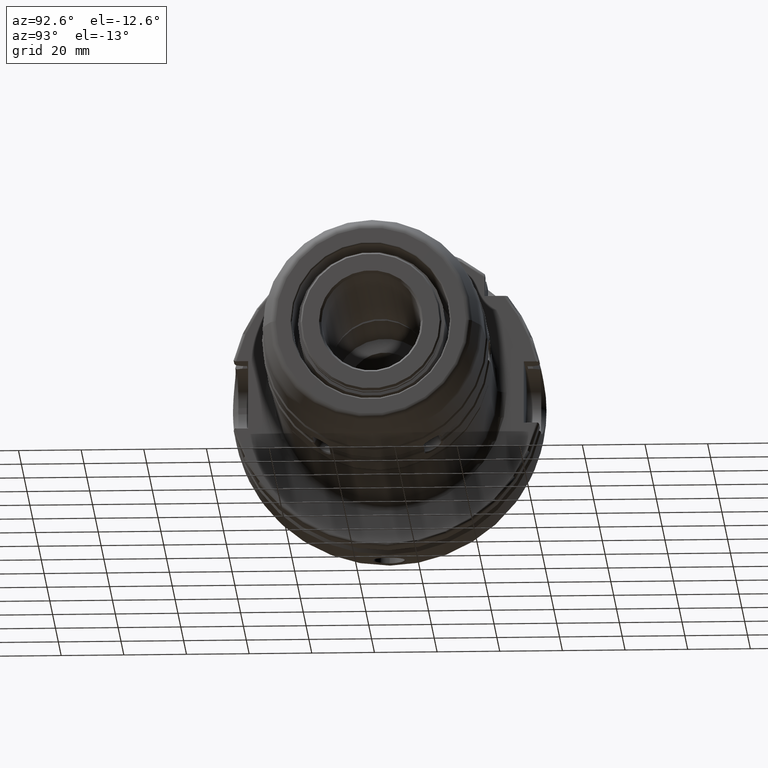
[diagram: clean part render]
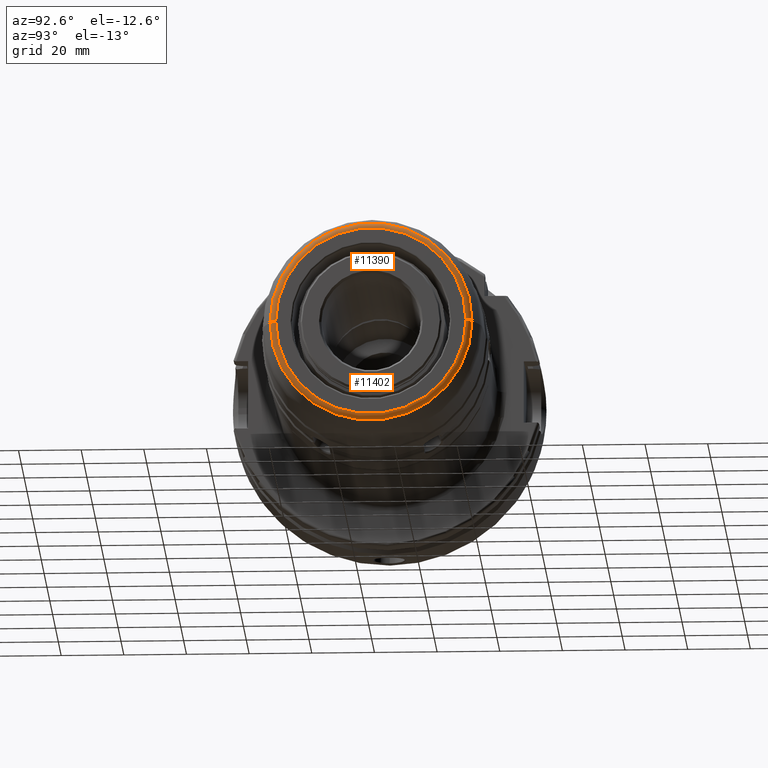
[diagram: same view with one multi-face feature highlighted, each face labeled with its STEP entity id]
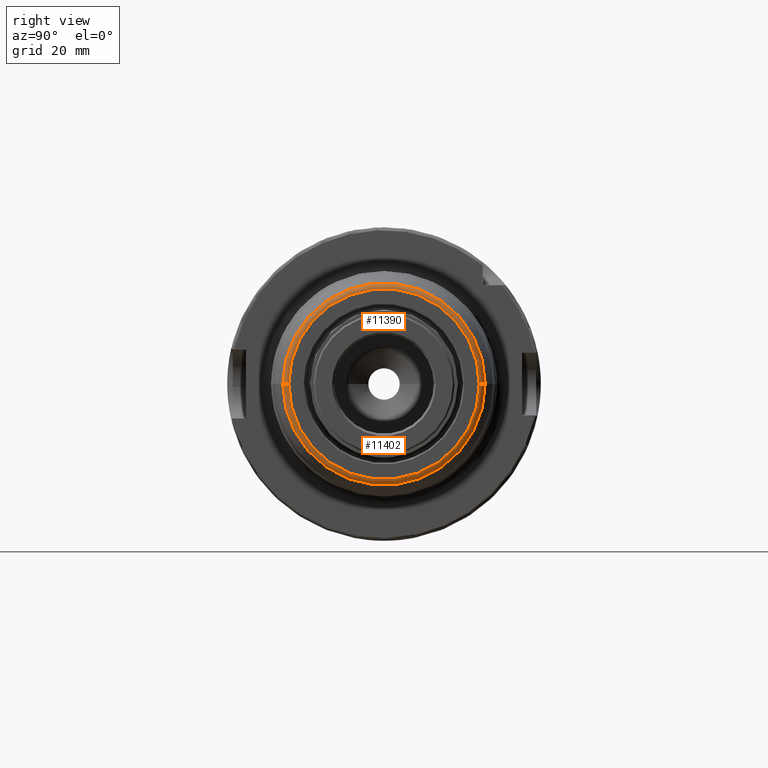
[diagram: same view with one multi-face feature highlighted, each face labeled with its STEP entity id]
A machine part, auxiliary view. The highlighted faces form ONE feature: a constant-radius fillet chain: 2 tangent blend faces with common blend radius 2 mm. The faces share edges in the B-rep.
A second angle (right view) of the same feature is appended — it is thin or edge-on in the first view.
Their STEP definitions:
[1] entity #11390 (Torus):
#6359=CARTESIAN_POINT('',(0.E0,0.E0,0.E0));
#6360=DIRECTION('',(1.E0,0.E0,0.E0));
#6361=DIRECTION('',(0.E0,1.E0,-2.032534202227E-9));
#6362=AXIS2_PLACEMENT_3D('',#6359,#6360,#6361);
#8138=CARTESIAN_POINT('',(-1.315959713349E0,0.E0,0.E0));
#8139=DIRECTION('',(1.E0,0.E0,0.E0));
#8140=DIRECTION('',(0.E0,1.E0,2.913175754480E-10));
#8141=AXIS2_PLACEMENT_3D('',#8138,#8139,#8140);
#8143=CARTESIAN_POINT('',(-2.E0,3.038390614189E1,-6.175633518457E-8));
#8144=DIRECTION('',(0.E0,2.032534424622E-9,1.E0));
#8145=DIRECTION('',(1.E0,0.E0,0.E0));
#8146=AXIS2_PLACEMENT_3D('',#8143,#8144,#8145);
#8148=CARTESIAN_POINT('',(-2.E0,-3.038390614189E1,6.175633143757E-8));
#8149=DIRECTION('',(0.E0,-2.032534301456E-9,-1.E0));
#8150=DIRECTION('',(1.E0,0.E0,0.E0));
#8151=AXIS2_PLACEMENT_3D('',#8148,#8149,#8150);
#8329=CARTESIAN_POINT('',(0.E0,3.038390614189E1,-6.175632843064E-8));
#8330=CARTESIAN_POINT('',(0.E0,-3.038390614189E1,6.175633215159E-8));
#8331=VERTEX_POINT('',#8329);
#8332=VERTEX_POINT('',#8330);
#8333=CARTESIAN_POINT('',(-1.315959713349E0,3.226329138346E1,
9.398863821802E-9));
#8334=CARTESIAN_POINT('',(-1.315959713349E0,-3.226329138346E1,
-9.398859870689E-9));
#8335=VERTEX_POINT('',#8333);
#8336=VERTEX_POINT('',#8334);
#11377=CARTESIAN_POINT('',(-2.E0,0.E0,0.E0));
#11378=DIRECTION('',(-1.E0,0.E0,0.E0));
#11379=DIRECTION('',(0.E0,9.999698351914E-1,-7.767155679999E-3));
#11380=AXIS2_PLACEMENT_3D('',#11377,#11378,#11379);
#11381=TOROIDAL_SURFACE('',#11380,3.038390614189E1,2.E0);
#11382=ORIENTED_EDGE('',*,*,#8478,.T.);
#11384=ORIENTED_EDGE('',*,*,#11383,.T.);
#11385=ORIENTED_EDGE('',*,*,#11371,.F.);
#11387=ORIENTED_EDGE('',*,*,#11386,.F.);
#11388=EDGE_LOOP('',(#11382,#11384,#11385,#11387));
#11389=FACE_OUTER_BOUND('',#11388,.F.);
#11390=ADVANCED_FACE('',(#11389),#11381,.T.);
#6363=CIRCLE('',#6362,3.038390614189E1);
#8142=CIRCLE('',#8141,3.226329138346E1);
#8147=CIRCLE('',#8146,2.E0);
#8152=CIRCLE('',#8151,2.E0);
#8478=EDGE_CURVE('',#8331,#8332,#6363,.T.);
#11371=EDGE_CURVE('',#8335,#8336,#8142,.T.);
#11383=EDGE_CURVE('',#8332,#8336,#8152,.T.);
#11386=EDGE_CURVE('',#8331,#8335,#8147,.T.);
[2] entity #11402 (Torus):
#6364=CARTESIAN_POINT('',(0.E0,0.E0,0.E0));
#6365=DIRECTION('',(1.E0,0.E0,0.E0));
#6366=DIRECTION('',(0.E0,-1.E0,2.032534079762E-9));
#6367=AXIS2_PLACEMENT_3D('',#6364,#6365,#6366);
#8124=CARTESIAN_POINT('',(-1.315959713349E0,0.E0,0.E0));
#8125=DIRECTION('',(1.E0,0.E0,0.E0));
#8126=DIRECTION('',(0.E0,-1.E0,-2.913181420019E-10));
#8127=AXIS2_PLACEMENT_3D('',#8124,#8125,#8126);
#8143=CARTESIAN_POINT('',(-2.E0,3.038390614189E1,-6.175633518457E-8));
#8144=DIRECTION('',(0.E0,2.032534424622E-9,1.E0));
#8145=DIRECTION('',(1.E0,0.E0,0.E0));
#8146=AXIS2_PLACEMENT_3D('',#8143,#8144,#8145);
#8148=CARTESIAN_POINT('',(-2.E0,-3.038390614189E1,6.175633143757E-8));
#8149=DIRECTION('',(0.E0,-2.032534301456E-9,-1.E0));
#8150=DIRECTION('',(1.E0,0.E0,0.E0));
#8151=AXIS2_PLACEMENT_3D('',#8148,#8149,#8150);
#8329=CARTESIAN_POINT('',(0.E0,3.038390614189E1,-6.175632843064E-8));
#8330=CARTESIAN_POINT('',(0.E0,-3.038390614189E1,6.175633215159E-8));
#8331=VERTEX_POINT('',#8329);
#8332=VERTEX_POINT('',#8330);
#8333=CARTESIAN_POINT('',(-1.315959713349E0,3.226329138346E1,
9.398863821802E-9));
#8334=CARTESIAN_POINT('',(-1.315959713349E0,-3.226329138346E1,
-9.398859870689E-9));
#8335=VERTEX_POINT('',#8333);
#8336=VERTEX_POINT('',#8334);
#11391=CARTESIAN_POINT('',(-2.E0,0.E0,0.E0));
#11392=DIRECTION('',(-1.E0,0.E0,0.E0));
#11393=DIRECTION('',(0.E0,-9.999698351914E-1,7.767155679999E-3));
#11394=AXIS2_PLACEMENT_3D('',#11391,#11392,#11393);
#11395=TOROIDAL_SURFACE('',#11394,3.038390614189E1,2.E0);
#11396=ORIENTED_EDGE('',*,*,#8480,.T.);
#11397=ORIENTED_EDGE('',*,*,#11386,.T.);
#11398=ORIENTED_EDGE('',*,*,#11357,.F.);
#11399=ORIENTED_EDGE('',*,*,#11383,.F.);
#11400=EDGE_LOOP('',(#11396,#11397,#11398,#11399));
#11401=FACE_OUTER_BOUND('',#11400,.F.);
#11402=ADVANCED_FACE('',(#11401),#11395,.T.);
#6368=CIRCLE('',#6367,3.038390614189E1);
#8128=CIRCLE('',#8127,3.226329138346E1);
#8147=CIRCLE('',#8146,2.E0);
#8152=CIRCLE('',#8151,2.E0);
#8480=EDGE_CURVE('',#8332,#8331,#6368,.T.);
#11357=EDGE_CURVE('',#8336,#8335,#8128,.T.);
#11383=EDGE_CURVE('',#8332,#8336,#8152,.T.);
#11386=EDGE_CURVE('',#8331,#8335,#8147,.T.);